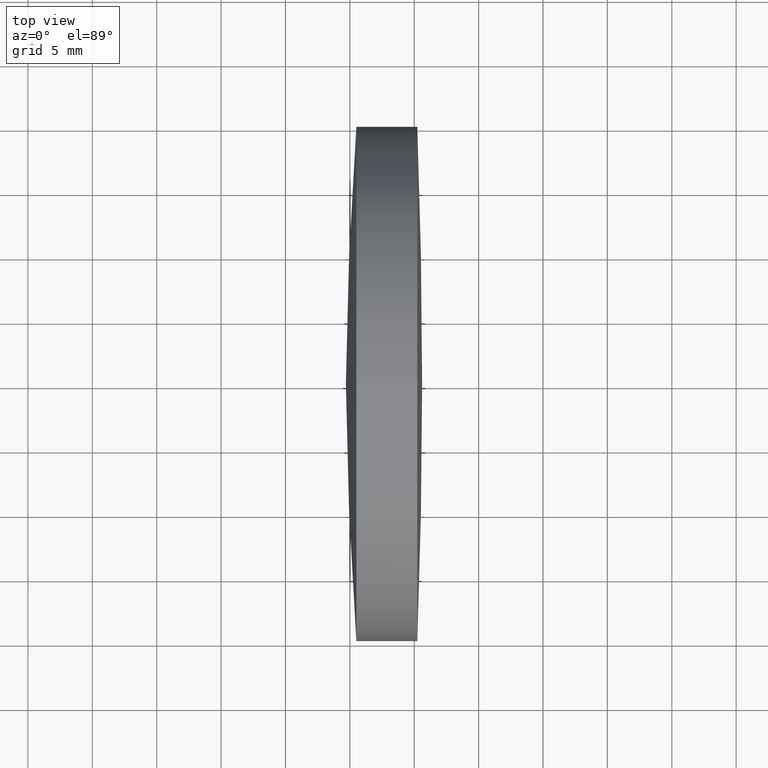
[diagram: clean part render]
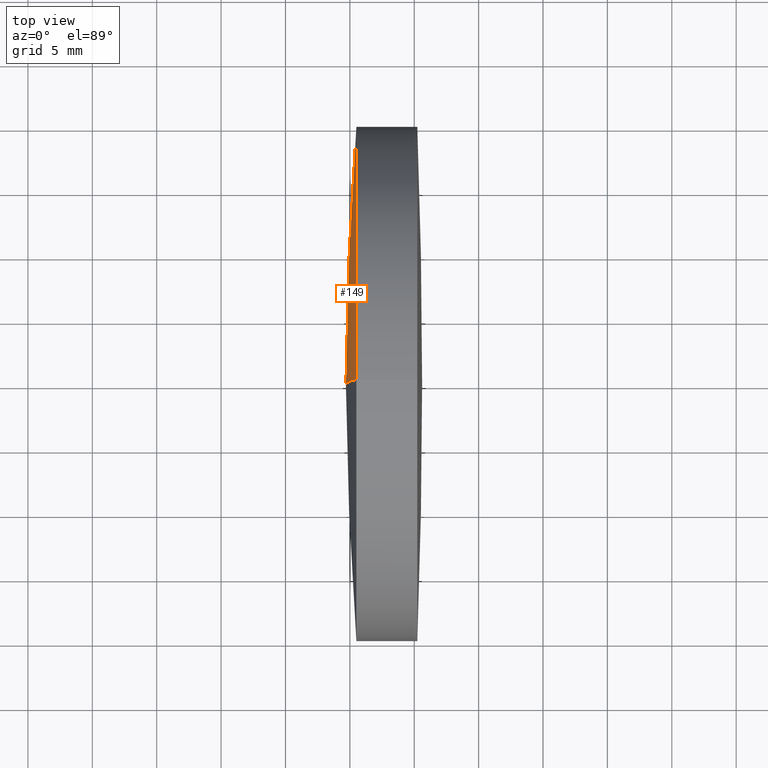
[diagram: same view with one face highlighted and labeled with its STEP entity id]
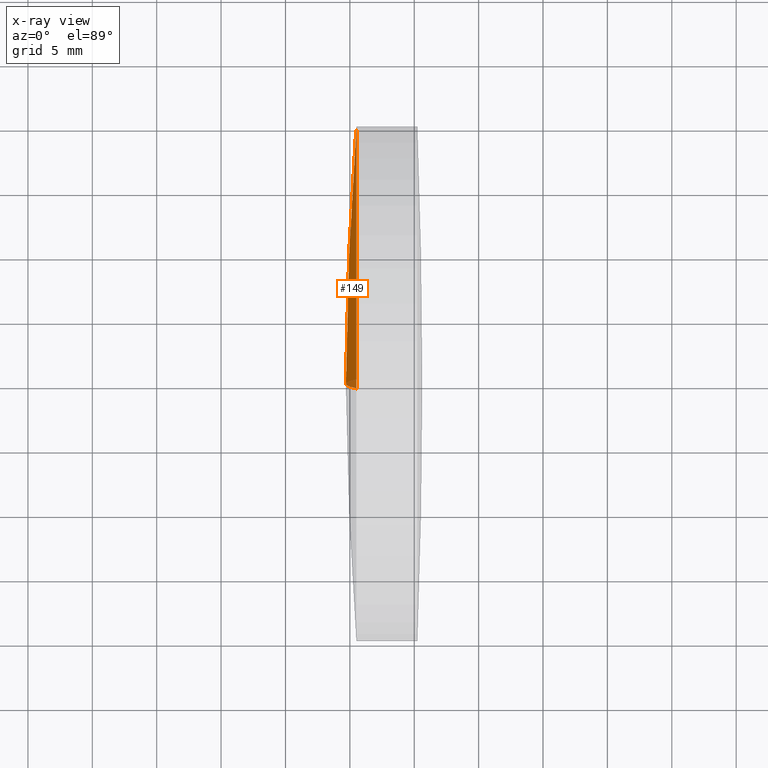
[diagram: x-ray of the same camera — body ghosted, the highlighted face saturated]
A machine part, top view. The second image highlights one B-rep face of the part: STEP entity #149.
The next image is the same camera in x-ray: the body ghosted, the highlighted face saturated — about 4% of this face is hidden behind the body in this view.
In plain terms, the highlighted spherical surface has radius 245.64 mm.
Its self-contained STEP definition (entity closure, byte-faithful):
#1 = VERTEX_POINT ( 'NONE', #129 ) ;
#2 = ORIENTED_EDGE ( 'NONE', *, *, #91, .F. ) ;
#7 = CARTESIAN_POINT ( 'NONE',  ( 310.5066381123800700, 0.0000000000000000000, 0.0000000000000000000 ) ) ;
#36 = AXIS2_PLACEMENT_3D ( 'NONE', #7, #174, #323 ) ;
#37 = VERTEX_POINT ( 'NONE', #182 ) ;
#42 = AXIS2_PLACEMENT_3D ( 'NONE', #312, #133, #288 ) ;
#85 = CARTESIAN_POINT ( 'NONE',  ( 310.5066381123801300, 2.449293598294697000E-015, -20.00000000000005700 ) ) ;
#91 = EDGE_CURVE ( 'NONE', #37, #1, #248, .T. ) ;
#122 = VERTEX_POINT ( 'NONE', #85 ) ;
#129 = CARTESIAN_POINT ( 'NONE',  ( 309.6910846041468500, 0.0000000000000000000, -1.194186039121518800E-013 ) ) ;
#133 = DIRECTION ( 'NONE',  ( 0.0000000000000000000, -1.000000000000000000, 0.0000000000000000000 ) ) ;
#135 = FACE_OUTER_BOUND ( 'NONE', #259, .T. ) ;
#137 = AXIS2_PLACEMENT_3D ( 'NONE', #294, #139, #316 ) ;
#139 = DIRECTION ( 'NONE',  ( -0.0000000000000000000, 1.000000000000000000, 1.224646799147353200E-016 ) ) ;
#149 = ADVANCED_FACE ( 'NONE', ( #135 ), #340, .T. ) ;
#151 = CARTESIAN_POINT ( 'NONE',  ( 555.3310846041468900, 0.0000000000000000000, -1.344597158992796700E-013 ) ) ;
#160 = CIRCLE ( 'NONE', #137, 245.6400000000000400 ) ;
#174 = DIRECTION ( 'NONE',  ( -1.000000000000000000, -0.0000000000000000000, -0.0000000000000000000 ) ) ;
#180 = EDGE_CURVE ( 'NONE', #37, #122, #221, .T. ) ;
#182 = CARTESIAN_POINT ( 'NONE',  ( 310.5066381123801300, 0.0000000000000000000, 19.99999999999992200 ) ) ;
#211 = ORIENTED_EDGE ( 'NONE', *, *, #180, .T. ) ;
#221 = CIRCLE ( 'NONE', #36, 19.99999999999986500 ) ;
#234 = DIRECTION ( 'NONE',  ( 0.0000000000000000000, 1.000000000000000000, 0.0000000000000000000 ) ) ;
#248 = CIRCLE ( 'NONE', #42, 245.6400000000000400 ) ;
#259 = EDGE_LOOP ( 'NONE', ( #211, #329, #2 ) ) ;
#278 = DIRECTION ( 'NONE',  ( 0.0000000000000000000, 0.0000000000000000000, 1.000000000000000000 ) ) ;
#288 = DIRECTION ( 'NONE',  ( 0.0000000000000000000, 0.0000000000000000000, -1.000000000000000000 ) ) ;
#294 = CARTESIAN_POINT ( 'NONE',  ( 555.3310846041468900, 0.0000000000000000000, -1.344597158992796700E-013 ) ) ;
#312 = CARTESIAN_POINT ( 'NONE',  ( 555.3310846041468900, 0.0000000000000000000, -1.344597158992796700E-013 ) ) ;
#316 = DIRECTION ( 'NONE',  ( 0.0000000000000000000, -1.224646799147353500E-016, 1.000000000000000000 ) ) ;
#321 = EDGE_CURVE ( 'NONE', #122, #1, #160, .T. ) ;
#323 = DIRECTION ( 'NONE',  ( 0.0000000000000000000, 0.0000000000000000000, 1.000000000000000000 ) ) ;
#329 = ORIENTED_EDGE ( 'NONE', *, *, #321, .T. ) ;
#340 = SPHERICAL_SURFACE ( 'NONE', #346, 245.6400000000000400 ) ;
#346 = AXIS2_PLACEMENT_3D ( 'NONE', #151, #234, #278 ) ;